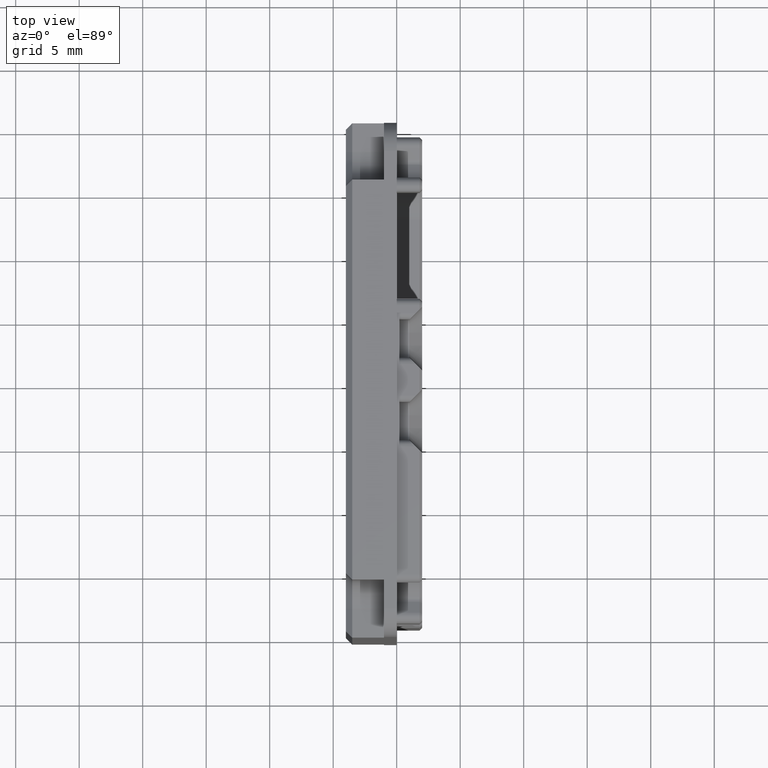
[diagram: clean part render]
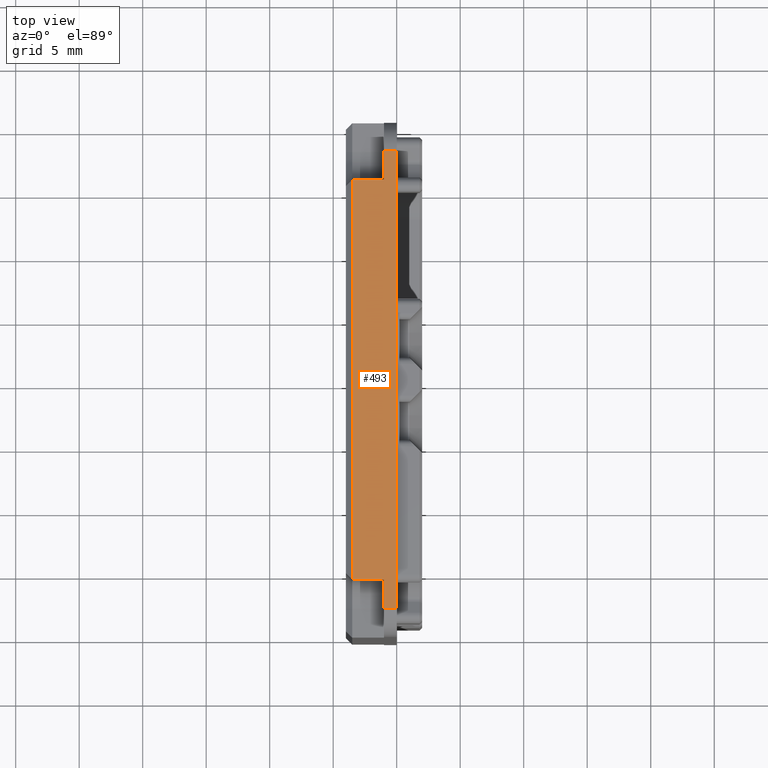
[diagram: same view with one face highlighted and labeled with its STEP entity id]
A machine part, top view. The second image highlights one B-rep face of the part: STEP entity #493.
In plain terms, the highlighted planar face has unit normal (0, 0, 1).
Its self-contained STEP definition (entity closure, byte-faithful):
#493=ADVANCED_FACE('',(#871),#3599,.T.);
#871=FACE_OUTER_BOUND('',#1274,.F.);
#1274=EDGE_LOOP('',(#1803,#1804,#1805,#1806,#1807,#1808,#1809,#1810));
#1803=ORIENTED_EDGE('',*,*,#6158,.F.);
#1804=ORIENTED_EDGE('',*,*,#6171,.T.);
#1805=ORIENTED_EDGE('',*,*,#6191,.F.);
#1806=ORIENTED_EDGE('',*,*,#6176,.F.);
#1807=ORIENTED_EDGE('',*,*,#6184,.T.);
#1808=ORIENTED_EDGE('',*,*,#6174,.T.);
#1809=ORIENTED_EDGE('',*,*,#6157,.F.);
#1810=ORIENTED_EDGE('',*,*,#5984,.T.);
#3599=PLANE('',#9150);
#5984=EDGE_CURVE('',#8738,#8737,#6933,.T.);
#6157=EDGE_CURVE('',#8738,#8577,#7022,.T.);
#6158=EDGE_CURVE('',#8576,#8737,#7023,.T.);
#6171=EDGE_CURVE('',#8576,#8565,#7034,.T.);
#6174=EDGE_CURVE('',#8563,#8577,#7036,.T.);
#6176=EDGE_CURVE('',#8562,#8561,#7037,.T.);
#6184=EDGE_CURVE('',#8562,#8563,#7041,.T.);
#6191=EDGE_CURVE('',#8561,#8565,#7048,.T.);
#6933=LINE('',#12307,#7612);
#7022=LINE('',#12480,#7701);
#7023=LINE('',#12481,#7702);
#7034=LINE('',#12494,#7713);
#7036=LINE('',#12497,#7715);
#7037=LINE('',#12499,#7716);
#7041=LINE('',#12507,#7720);
#7048=LINE('',#12514,#7727);
#7612=VECTOR('',#9600,31.4999962539123);
#7701=VECTOR('',#9857,2.5);
#7702=VECTOR('',#9858,2.5);
#7713=VECTOR('',#9873,2.24999986304782);
#7715=VECTOR('',#9877,2.24999986304751);
#7716=VECTOR('',#9880,35.999999726089);
#7720=VECTOR('',#9892,1.);
#7727=VECTOR('',#9899,0.999999999999998);
#8561=VERTEX_POINT('',#11851);
#8562=VERTEX_POINT('',#11852);
#8563=VERTEX_POINT('',#11853);
#8565=VERTEX_POINT('',#11855);
#8576=VERTEX_POINT('',#11866);
#8577=VERTEX_POINT('',#11867);
#8737=VERTEX_POINT('',#12027);
#8738=VERTEX_POINT('',#12028);
#9150=AXIS2_PLACEMENT_3D('',#13210,#10775,#10776);
#9600=DIRECTION('',(0.,1.,0.));
#9857=DIRECTION('',(1.,0.,0.));
#9858=DIRECTION('',(-1.,0.,0.));
#9873=DIRECTION('',(0.,1.,0.));
#9877=DIRECTION('',(0.,1.,0.));
#9880=DIRECTION('',(0.,1.,0.));
#9892=DIRECTION('',(-1.,0.,0.));
#9899=DIRECTION('',(-1.,0.,0.));
#10775=DIRECTION('',(0.,0.,1.));
#10776=DIRECTION('',(0.,1.,0.));
#11851=CARTESIAN_POINT('',(0.,18.0000000114153,20.2499963021));
#11852=CARTESIAN_POINT('',(0.,-17.9999998972827,20.2499963020999));
#11853=CARTESIAN_POINT('',(-0.999999999999998,-17.9999998972827,20.2499963020999));
#11855=CARTESIAN_POINT('',(-0.999999999999997,18.0000000114153,20.2499963020999));
#11866=CARTESIAN_POINT('',(-0.999999999999998,15.7499999657561,20.249997518668));
#11867=CARTESIAN_POINT('',(-0.999999999999998,-15.7500000342382,20.2499975507936));
#12027=CARTESIAN_POINT('',(-3.5,15.7499999657559,20.2499963021001));
#12028=CARTESIAN_POINT('',(-3.5,-15.7499990977178,20.2499981751405));
#12307=CARTESIAN_POINT('',(-3.5,-15.7499962881568,20.2499963020998));
#12480=CARTESIAN_POINT('',(-3.5,-15.7500000342382,20.2499963020998));
#12481=CARTESIAN_POINT('',(-1.,15.7499999657564,20.2499963020998));
#12494=CARTESIAN_POINT('',(-0.999999999999996,15.7499999657555,20.2499963020998));
#12497=CARTESIAN_POINT('',(-0.999999999999998,-17.9999998972857,20.2499963020998));
#12499=CARTESIAN_POINT('',(0.,-17.9999998972857,20.2499963020998));
#12507=CARTESIAN_POINT('',(0.,-17.9999998972857,20.2499963020998));
#12514=CARTESIAN_POINT('',(0.,18.0000001027213,20.2499963021));
#13210=CARTESIAN_POINT('',(0.359999997260888,-18.3599998945466,20.2499963020998));